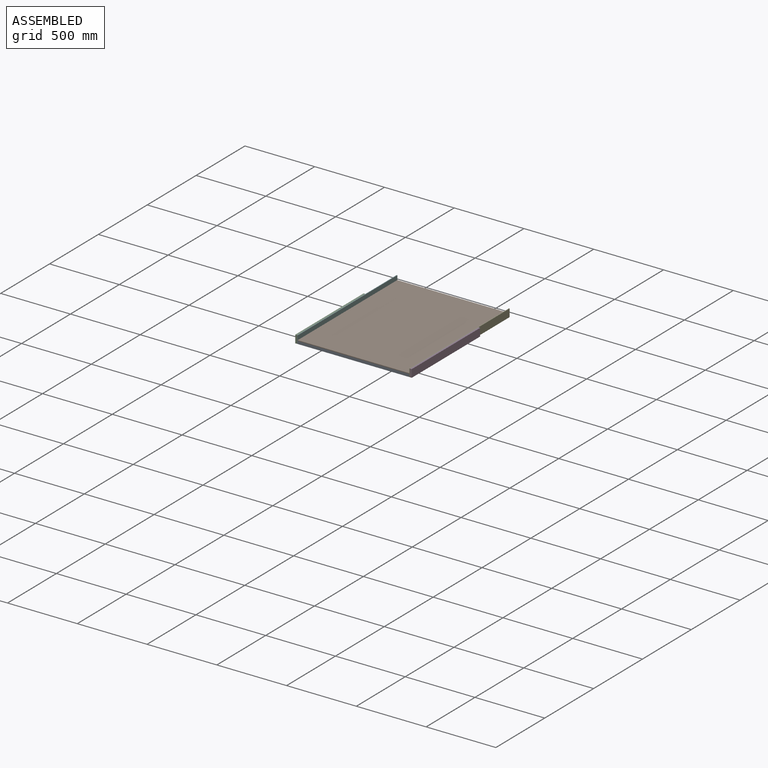
[diagram: assembled view]
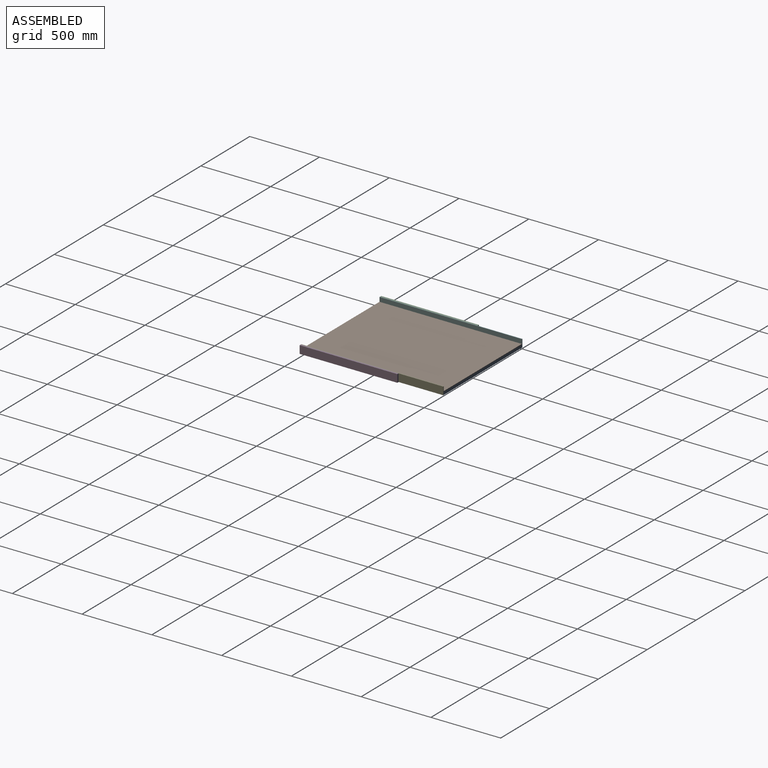
[diagram: assembled view, second angle]
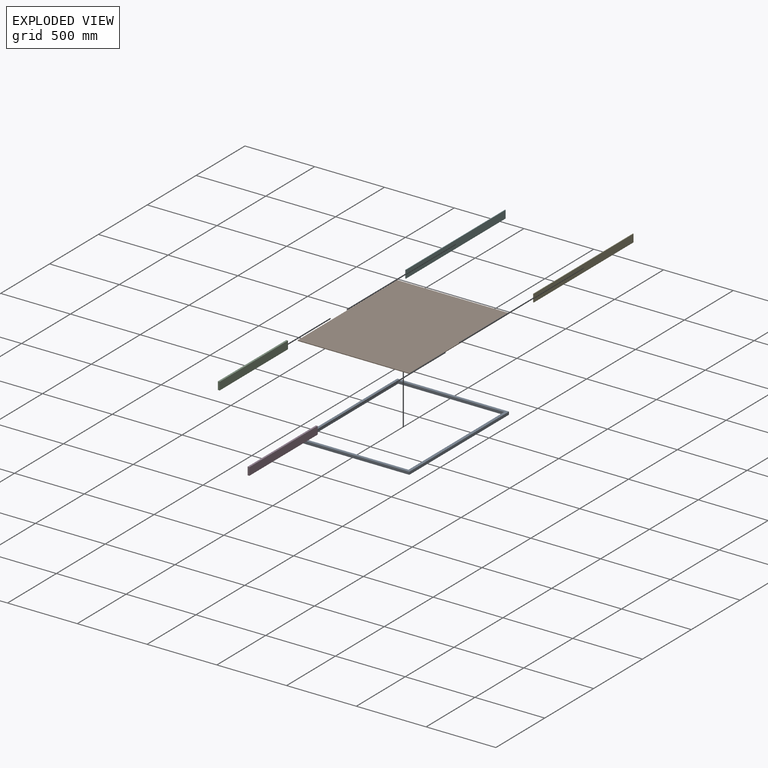
[diagram: exploded view]
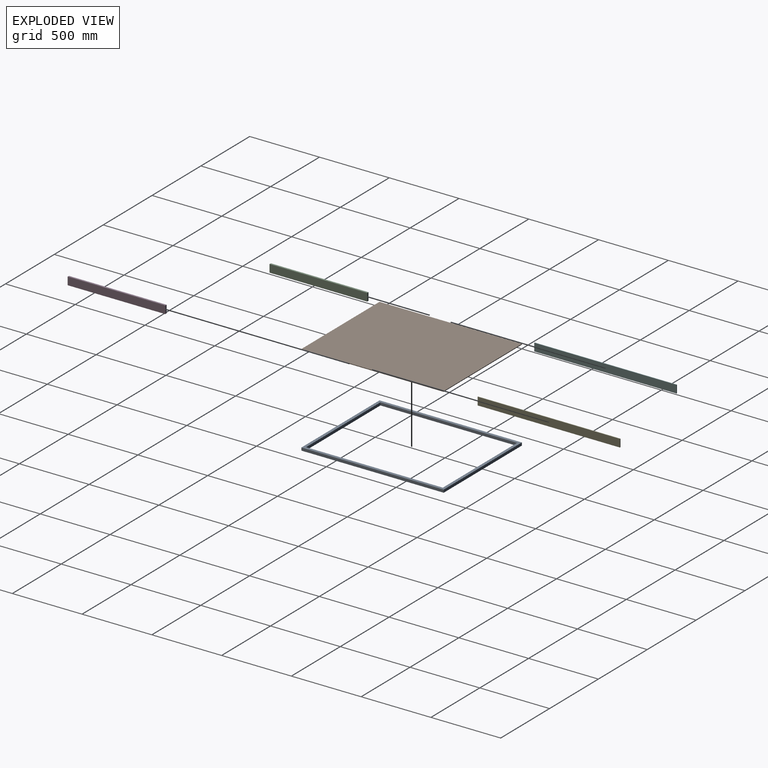
[diagram: exploded view, second angle]
ASSEMBLY  parts=6 mates=7
PART A: 10 faces, bbox 800x1020x20 mm
  f0: plane 800x20mm, normal (0,-1,0), area 16000mm2, adj f1,f7,f8,f9
  f1: plane 1020x20mm, normal (1,0,0), area 20400mm2, adj f0,f2,f8,f9
  f2: plane 800x20mm, normal (0,1,0), area 16000mm2, adj f1,f7,f8,f9
  f3: plane 760x20mm, normal (0,-1,0), area 15200mm2, adj f4,f6,f8,f9
  f4: plane 980x20mm, normal (-1,0,0), area 19600mm2, adj f3,f5,f8,f9
  f5: plane 760x20mm, normal (0,1,0), area 15200mm2, adj f4,f6,f8,f9
  f6: plane 980x20mm, normal (1,0,0), area 19600mm2, adj f3,f5,f8,f9
  f7: plane 1020x20mm, normal (-1,0,0), area 20400mm2, adj f0,f2,f8,f9
  f8: plane 1020x800mm, normal (0,0,1), area 71200mm2, adj f0,f1,f2,f3,f4,f5,f6,f7
  f9: plane 1020x800mm, normal (0,0,-1), area 71200mm2, adj f0,f1,f2,f3,f4,f5,f6,f7
PART B: 6 faces, bbox 800x1020x5 mm
  f0: plane 800x5mm, normal (0,-1,0), area 4000mm2, adj f1,f3,f4,f5
  f1: plane 1020x5mm, normal (1,0,0), area 5100mm2, adj f0,f2,f4,f5
  f2: plane 800x5mm, normal (0,1,0), area 4000mm2, adj f1,f3,f4,f5
  f3: plane 1020x5mm, normal (-1,0,0), area 5100mm2, adj f0,f2,f4,f5
  f4: plane 1020x800mm, normal (0,0,1), area 816000mm2, adj f0,f1,f2,f3
  f5: plane 1020x800mm, normal (0,0,-1), area 816000mm2, adj f0,f1,f2,f3
PART C: 6 faces, bbox 12.7x700x56 mm
  f0: plane 700x12.7mm, normal (0,0,-1), area 8890mm2, adj f1,f3,f4,f5
  f1: plane 700x56mm, normal (1,0,0), area 39200mm2, adj f0,f2,f4,f5
  f2: plane 700x12.7mm, normal (0,0,1), area 8890mm2, adj f1,f3,f4,f5
  f3: plane 700x56mm, normal (-1,0,0), area 39200mm2, adj f0,f2,f4,f5
  f4: plane 56x12.7mm, normal (0,1,0), area 711.2mm2, adj f0,f1,f2,f3
  f5: plane 56x12.7mm, normal (0,-1,0), area 711.2mm2, adj f0,f1,f2,f3
PART D: 6 faces, bbox 12.7x700x56 mm
  f0: plane 700x12.7mm, normal (0,0,-1), area 8890mm2, adj f1,f3,f4,f5
  f1: plane 700x56mm, normal (-1,0,0), area 39200mm2, adj f0,f2,f4,f5
  f2: plane 700x12.7mm, normal (0,0,1), area 8890mm2, adj f1,f3,f4,f5
  f3: plane 700x56mm, normal (1,0,0), area 39200mm2, adj f0,f2,f4,f5
  f4: plane 56x12.7mm, normal (0,1,0), area 711.2mm2, adj f0,f1,f2,f3
  f5: plane 56x12.7mm, normal (0,-1,0), area 711.2mm2, adj f0,f1,f2,f3
PART E: 6 faces, bbox 5x1020x56 mm
  f0: plane 1020x5mm, normal (0,0,-1), area 5100mm2, adj f1,f3,f4,f5
  f1: plane 56x5mm, normal (0,-1,0), area 280mm2, adj f0,f2,f4,f5
  f2: plane 1020x5mm, normal (0,0,1), area 5100mm2, adj f1,f3,f4,f5
  f3: plane 56x5mm, normal (0,1,0), area 280mm2, adj f0,f2,f4,f5
  f4: plane 1020x56mm, normal (-1,0,0), area 57120mm2, adj f0,f1,f2,f3
  f5: plane 1020x56mm, normal (1,0,0), area 57120mm2, adj f0,f1,f2,f3
PART F: same geometry as E
PLACE A t=(535.73,-213.64,188.97)mm
PLACE B t=(535.73,-213.64,188.97)mm
PLACE C t=(535.73,-213.64,188.97)mm
PLACE D t=(535.73,-213.64,188.97)mm
PLACE E t=(1340.73,-213.64,188.97)mm
PLACE F t=(535.73,-213.64,188.97)mm
MATE planar A.f0 <-> D.f5  axis (0,-1,0) through (535.73,-723.64,188.97)mm
MATE fastened F.f1 <-> A.f0  axis (0,-1,0) through (135.73,-723.64,178.97)mm
MATE fastened B.f5 <-> A.f8  axis (0,0,1) through (935.73,-723.64,198.97)mm
MATE parallel A.f0 <-> D.f5  axis (0,-1,0) through (535.73,-723.64,188.97)mm
MATE fastened D.f5 <-> E.f1  axis (0,-1,0) through (940.73,-723.64,178.97)mm
MATE fastened E.f1 <-> A.f0  axis (0,-1,0) through (935.73,-723.64,178.97)mm
MATE fastened C.f5 <-> A.f0  axis (0,-1,0) through (130.73,-723.64,178.97)mm
